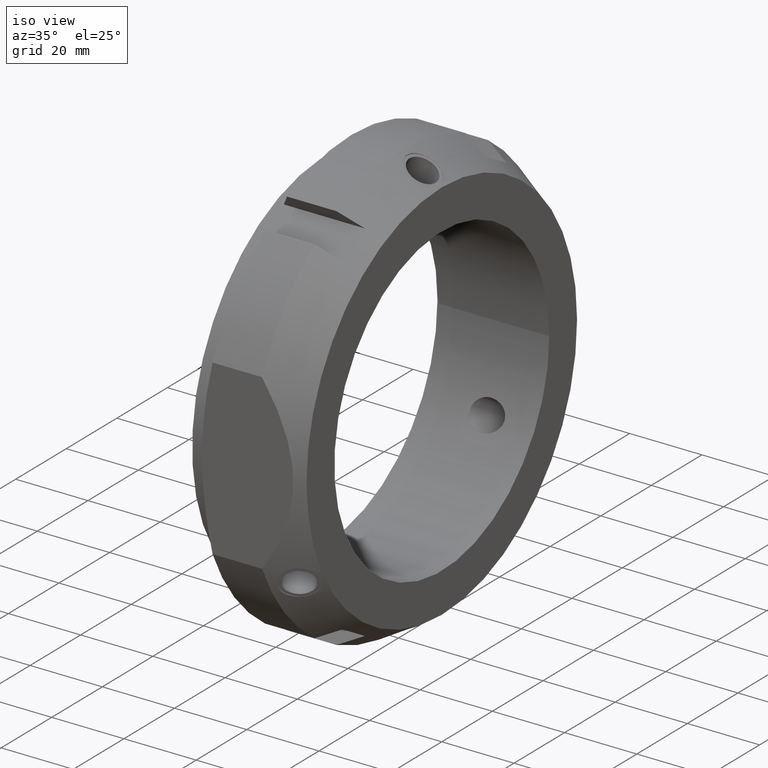
[diagram: clean part render]
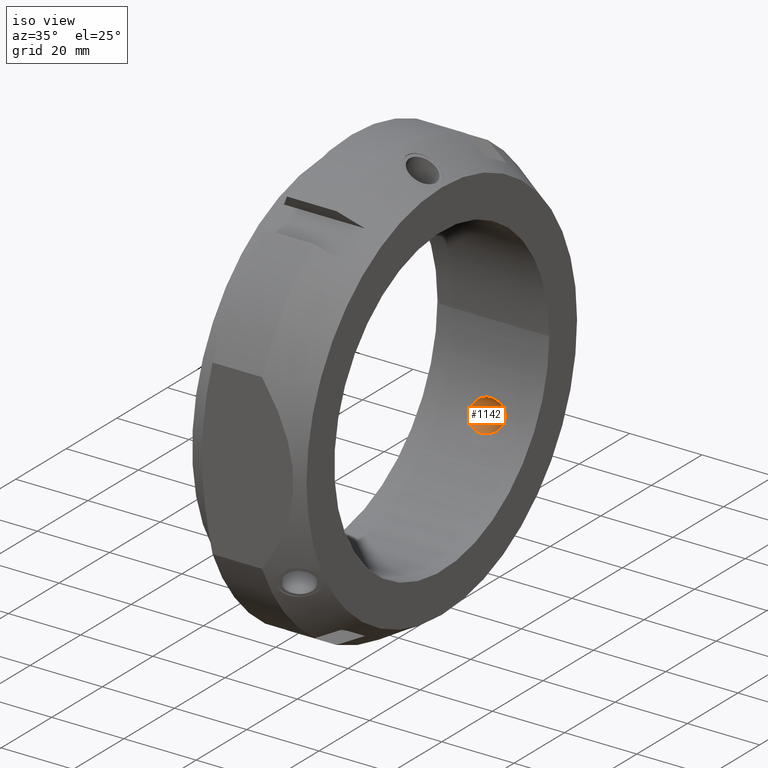
[diagram: same view with one face highlighted and labeled with its STEP entity id]
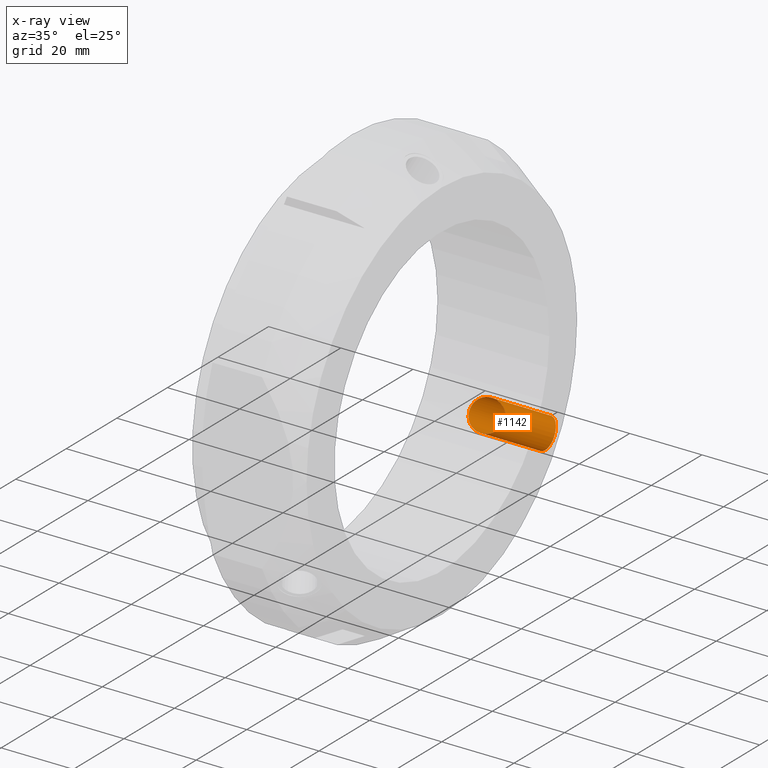
[diagram: x-ray of the same camera — body ghosted, the highlighted face saturated]
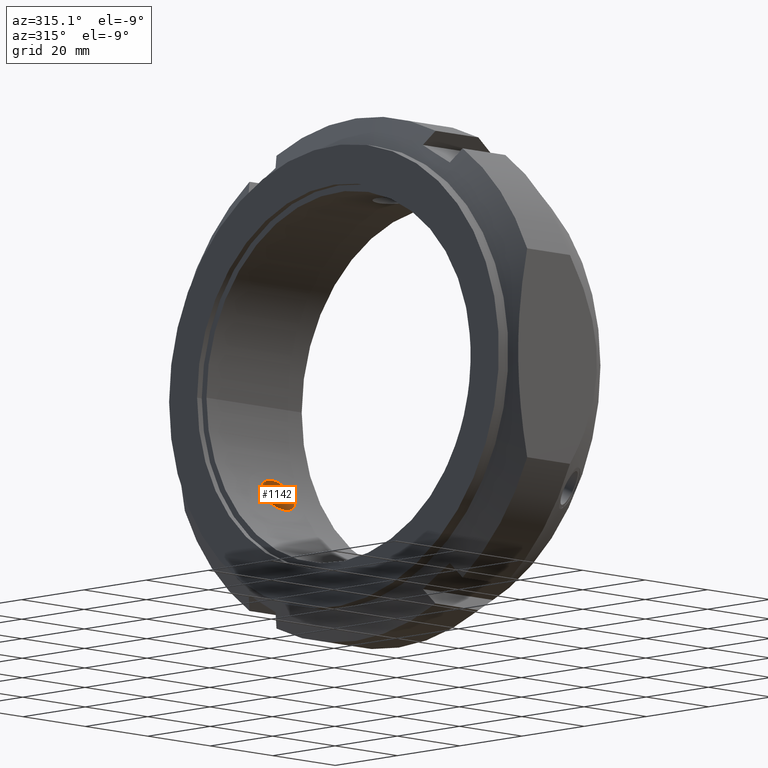
[diagram: same view with one face highlighted and labeled with its STEP entity id]
A machine part, iso view. The second image highlights one B-rep face of the part: STEP entity #1142.
The next image is the same camera in x-ray: the body ghosted, the highlighted face saturated — about 0% of this face is hidden behind the body in this view.
A second angle (auxiliary view) of the same face is appended — the face is thin or edge-on in the first view.
In plain terms, the highlighted cylindrical surface (bore or boss wall) has radius 4.188 mm, axis along (0.5, 0.75, -0.433).
Its self-contained STEP definition (entity closure, byte-faithful):
#1085=CARTESIAN_POINT('',(19.200000000000021,37.499999999999986,-21.650635094610983));
#1086=DIRECTION('',(0.500000000000001,0.75,-0.43301270189222));
#1087=DIRECTION('',(0.0,-0.5,-0.866025403784438));
#1088=AXIS2_PLACEMENT_3D('',#1085,#1086,#1087);
#1089=CYLINDRICAL_SURFACE('',#1088,4.188000000000001);
#1090=CARTESIAN_POINT('',(18.617962350149824,38.720943525224698,-17.519661312832497));
#1091=VERTEX_POINT('',#1090);
#1092=CARTESIAN_POINT('',(18.617962350149824,38.720943525224698,-17.519661312832497));
#1093=CARTESIAN_POINT('',(19.242535935894296,38.720943525224698,-17.519661312832497));
#1094=CARTESIAN_POINT('',(19.913274839819923,38.675693619005493,-17.620810060971497));
#1095=CARTESIAN_POINT('',(21.165224068937562,38.483965430218227,-18.035704286445402));
#1096=CARTESIAN_POINT('',(21.746499423863241,38.337118188527697,-18.34908286898461));
#1097=CARTESIAN_POINT('',(22.602661262870633,37.999590086561597,-19.036896275643155));
#1098=CARTESIAN_POINT('',(22.960245099423027,37.799206517985475,-19.434953832822618));
#1099=CARTESIAN_POINT('',(23.446159835550013,37.333964017916728,-20.314344088311017));
#1100=CARTESIAN_POINT('',(23.573272295291432,37.068254702331522,-20.79589950765785));
#1101=CARTESIAN_POINT('',(23.573272295291432,36.543904619345746,-21.704100492342185));
#1102=CARTESIAN_POINT('',(23.446159835550006,36.259720050653918,-22.174989219334556));
#1103=CARTESIAN_POINT('',(22.960245099423023,35.730766999594849,-23.017596171058475));
#1104=CARTESIAN_POINT('',(22.602661262870633,35.486230827197119,-23.390162210536115));
#1105=CARTESIAN_POINT('',(21.746499423863241,35.059330994950351,-24.026376824659174));
#1106=CARTESIAN_POINT('',(21.165224068937569,34.861360802314699,-24.310239557708453));
#1107=CARTESIAN_POINT('',(19.91327483981992,34.597915957564467,-24.68372815255676));
#1108=CARTESIAN_POINT('',(19.242535935894299,34.532943525224688,-24.773490094930956));
#1109=CARTESIAN_POINT('',(18.017306200723734,34.532943525224688,-24.773490094930956));
#1110=CARTESIAN_POINT('',(17.370911814085293,34.593430526387777,-24.689955205556107));
#1111=CARTESIAN_POINT('',(16.171807847128157,34.849575212317887,-24.327071978618314));
#1112=CARTESIAN_POINT('',(15.619293056916725,35.045131230601783,-24.047008603789713));
#1113=CARTESIAN_POINT('',(14.803137215268574,35.474469600150385,-23.408116183705836));
#1114=CARTESIAN_POINT('',(14.465899155382488,35.724460087320594,-23.027520154546647));
#1115=CARTESIAN_POINT('',(14.015026835697451,36.260202242252298,-22.174342520539764));
#1116=CARTESIAN_POINT('',(13.901500585826811,36.54546537713513,-21.701397180552668));
#1117=CARTESIAN_POINT('',(13.901500585826811,37.066693944542138,-20.798602819447375));
#1118=CARTESIAN_POINT('',(14.015026835697448,37.333645056131026,-20.315085027882112));
#1119=CARTESIAN_POINT('',(14.465899155382481,37.804647483655828,-19.424529894829607));
#1120=CARTESIAN_POINT('',(14.803137215268563,38.009258069902067,-19.017733767656154));
#1121=CARTESIAN_POINT('',(15.619293056916712,38.347885951205718,-18.326469622765732));
#1122=CARTESIAN_POINT('',(16.171807847128143,38.492649939334953,-18.017081455654647));
#1123=CARTESIAN_POINT('',(17.370911814085282,38.6788436895053,-17.613812037125879));
#1124=CARTESIAN_POINT('',(18.017306200723734,38.720943525224698,-17.519661312832497));
#1125=CARTESIAN_POINT('',(18.617962350149824,38.720943525224698,-17.519661312832497));
#1126=B_SPLINE_CURVE_WITH_KNOTS('',3,(#1092,#1093,#1094,#1095,#1096,#1097,#1098,#1099,#1100,#1101,#1102,#1103,#1104,#1105,#1106,#1107,#1108,#1109,#1110,#1111,#1112,#1113,#1114,#1115,#1116,#1117,#1118,#1119,#1120,#1121,#1122,#1123,#1124,#1125),.UNSPECIFIED.,.T.,.U.,(4,2,2,2,2,2,2,2,2,2,2,2,2,2,2,2,4),(0.0,0.187372075723342,0.374744151446684,0.532049176342418,0.689354201238153,0.846659226133888,1.003964251029623,1.191336326752965,1.378708402476307,1.558905247304133,1.73910209213196,1.895470662354065,2.05183923257617,2.208207802798274,2.364576373020379,2.544773217848206,2.724970062676033),.UNSPECIFIED.);
#1127=EDGE_CURVE('',#1091,#1091,#1126,.T.);
#1128=ORIENTED_EDGE('',*,*,#1127,.F.);
#1129=EDGE_LOOP('',(#1128));
#1130=FACE_OUTER_BOUND('',#1129,.T.);
#1131=CARTESIAN_POINT('',(26.700000000000031,46.65599999999997,-31.772740014043499));
#1132=VERTEX_POINT('',#1131);
#1133=CARTESIAN_POINT('',(26.700000000000031,48.749999999999964,-28.145825622994273));
#1134=DIRECTION('',(0.500000000000001,0.75,-0.43301270189222));
#1135=DIRECTION('',(0.0,-0.5,-0.866025403784438));
#1136=AXIS2_PLACEMENT_3D('',#1133,#1134,#1135);
#1137=CIRCLE('',#1136,4.188000000000001);
#1138=EDGE_CURVE('',#1132,#1132,#1137,.T.);
#1139=ORIENTED_EDGE('',*,*,#1138,.T.);
#1140=EDGE_LOOP('',(#1139));
#1141=FACE_BOUND('',#1140,.T.);
#1142=ADVANCED_FACE('',(#1130,#1141),#1089,.F.);